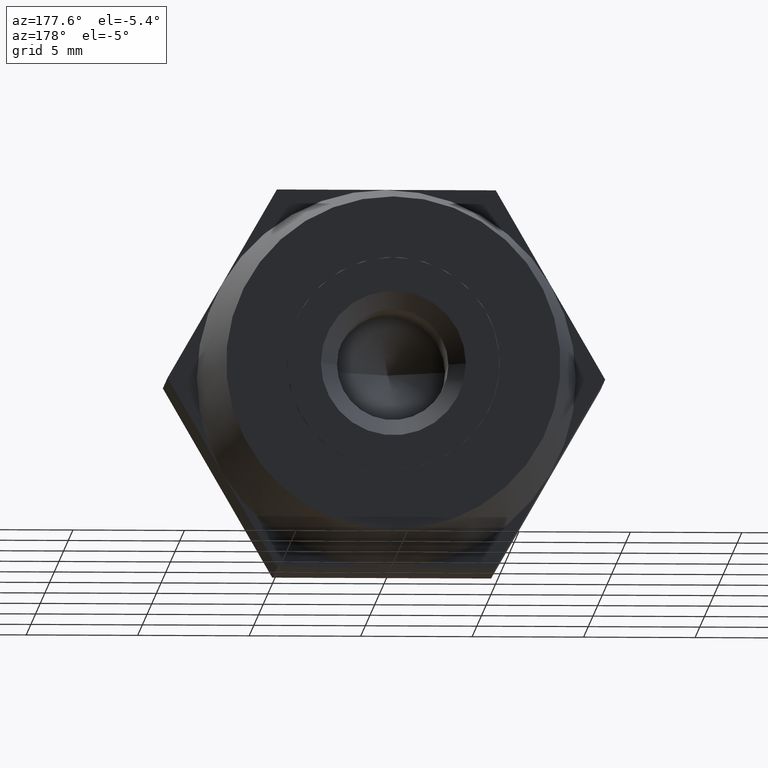
[diagram: clean part render]
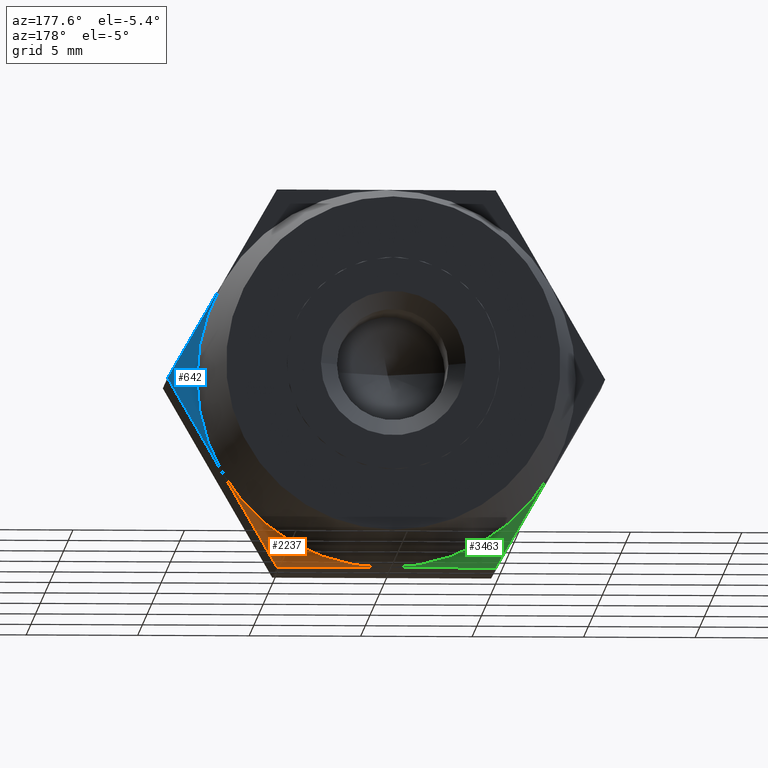
[diagram: same view with three faces highlighted in distinct colors, each labeled with its STEP entity id]
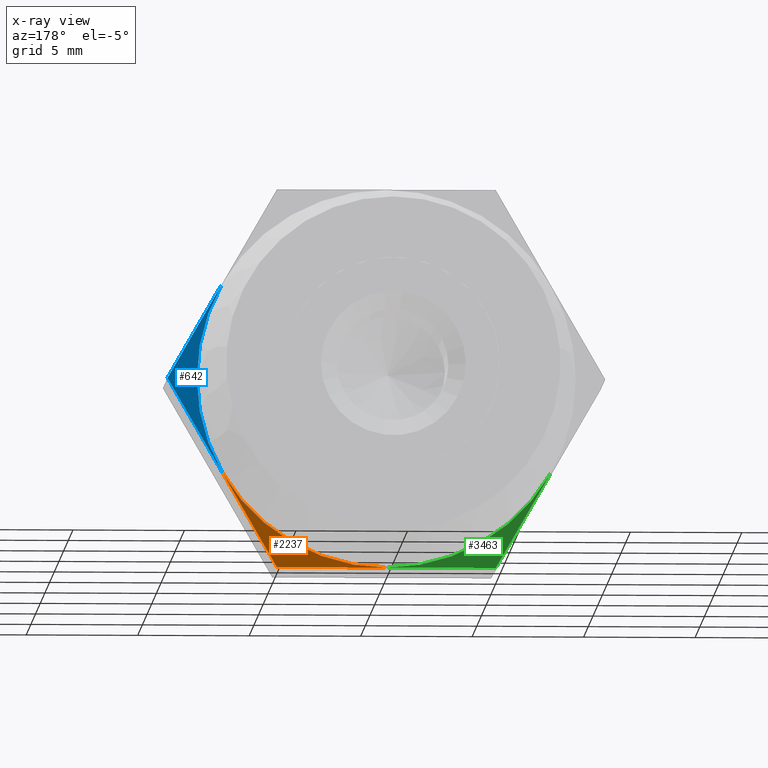
[diagram: x-ray of the same camera — body ghosted, the three highlighted faces saturated]
A machine part, auxiliary view with three faces highlighted in distinct colors.
The next image is the same camera in x-ray (body ghosted, the three faces saturated) — at least one of them is partly hidden behind the body in this view.
Their STEP definitions:

[orange] entity #2237 — the highlighted planar face has unit normal (0, 1, 0).
#1 = CARTESIAN_POINT ( 'NONE',  ( 4.907477288111810100, 2.500000000000000000, -8.500000000000000000 ) ) ;
#169 = DIRECTION ( 'NONE',  ( 0.0000000000000000000, 0.0000000000000000000, 1.000000000000000000 ) ) ;
#210 = DIRECTION ( 'NONE',  ( 0.0000000000000000000, 1.000000000000000000, 0.0000000000000000000 ) ) ;
#477 = PLANE ( 'NONE',  #1403 ) ;
#498 = CARTESIAN_POINT ( 'NONE',  ( 0.0000000000000000000, 2.500000000000000000, 0.0000000000000000000 ) ) ;
#547 = DIRECTION ( 'NONE',  ( -0.4999999999999998900, 0.0000000000000000000, -0.8660254037844387100 ) ) ;
#748 = EDGE_CURVE ( 'NONE', #3377, #1624, #1048, .T. ) ;
#1048 = LINE ( 'NONE', #1929, #3197 ) ;
#1079 = CARTESIAN_POINT ( 'NONE',  ( 9.814954576223639600, 2.500000000000000000, -1.574757103346314900E-015 ) ) ;
#1090 = LINE ( 'NONE', #1079, #1737 ) ;
#1174 = CARTESIAN_POINT ( 'NONE',  ( 7.361215932167730200, 2.500000000000000000, -4.250000000000000000 ) ) ;
#1403 = AXIS2_PLACEMENT_3D ( 'NONE', #2855, #210, #2880 ) ;
#1624 = VERTEX_POINT ( 'NONE', #3351 ) ;
#1737 = VECTOR ( 'NONE', #547, 1000.000000000000000 ) ;
#1844 = ORIENTED_EDGE ( 'NONE', *, *, #2571, .F. ) ;
#1848 = EDGE_CURVE ( 'NONE', #3218, #3377, #1090, .T. ) ;
#1929 = CARTESIAN_POINT ( 'NONE',  ( 4.907477288111810100, 2.500000000000000000, -8.500000000000000000 ) ) ;
#2237 = ADVANCED_FACE ( 'NONE', ( #3685 ), #477, .T. ) ;
#2571 = EDGE_CURVE ( 'NONE', #3218, #1624, #3635, .T. ) ;
#2584 = DIRECTION ( 'NONE',  ( -1.000000000000000000, 0.0000000000000000000, 0.0000000000000000000 ) ) ;
#2855 = CARTESIAN_POINT ( 'NONE',  ( 0.0000000000000000000, 2.500000000000000000, 0.0000000000000000000 ) ) ;
#2880 = DIRECTION ( 'NONE',  ( 0.0000000000000000000, 0.0000000000000000000, 1.000000000000000000 ) ) ;
#3104 = EDGE_LOOP ( 'NONE', ( #1844, #3508, #3479 ) ) ;
#3197 = VECTOR ( 'NONE', #2584, 1000.000000000000000 ) ;
#3218 = VERTEX_POINT ( 'NONE', #1174 ) ;
#3351 = CARTESIAN_POINT ( 'NONE',  ( 0.0000000000000000000, 2.500000000000000000, -8.500000000000000000 ) ) ;
#3353 = AXIS2_PLACEMENT_3D ( 'NONE', #498, #3759, #169 ) ;
#3377 = VERTEX_POINT ( 'NONE', #1 ) ;
#3479 = ORIENTED_EDGE ( 'NONE', *, *, #748, .T. ) ;
#3508 = ORIENTED_EDGE ( 'NONE', *, *, #1848, .T. ) ;
#3635 = CIRCLE ( 'NONE', #3353, 8.500000000000000000 ) ;
#3685 = FACE_OUTER_BOUND ( 'NONE', #3104, .T. ) ;
#3759 = DIRECTION ( 'NONE',  ( 0.0000000000000000000, 1.000000000000000000, 0.0000000000000000000 ) ) ;

[blue] entity #642 — the highlighted planar face has unit normal (0, 1, 0).
#17 = DIRECTION ( 'NONE',  ( 0.0000000000000000000, 1.000000000000000000, 0.0000000000000000000 ) ) ;
#149 = ORIENTED_EDGE ( 'NONE', *, *, #758, .T. ) ;
#502 = CARTESIAN_POINT ( 'NONE',  ( 9.814954576223639600, 2.500000000000000000, -1.574757103346314900E-015 ) ) ;
#539 = LINE ( 'NONE', #502, #3846 ) ;
#642 = ADVANCED_FACE ( 'NONE', ( #2320 ), #3439, .T. ) ;
#728 = EDGE_LOOP ( 'NONE', ( #1761, #1009, #149 ) ) ;
#758 = EDGE_CURVE ( 'NONE', #828, #3218, #539, .T. ) ;
#784 = DIRECTION ( 'NONE',  ( 0.4999999999999998900, 0.0000000000000000000, -0.8660254037844387100 ) ) ;
#828 = VERTEX_POINT ( 'NONE', #1011 ) ;
#930 = AXIS2_PLACEMENT_3D ( 'NONE', #1054, #2526, #1620 ) ;
#973 = EDGE_CURVE ( 'NONE', #2840, #828, #3561, .T. ) ;
#1009 = ORIENTED_EDGE ( 'NONE', *, *, #973, .T. ) ;
#1011 = CARTESIAN_POINT ( 'NONE',  ( 9.814954576223639600, 2.500000000000000000, -1.574757103346314900E-015 ) ) ;
#1054 = CARTESIAN_POINT ( 'NONE',  ( 0.0000000000000000000, 2.500000000000000000, 0.0000000000000000000 ) ) ;
#1174 = CARTESIAN_POINT ( 'NONE',  ( 7.361215932167730200, 2.500000000000000000, -4.250000000000000000 ) ) ;
#1529 = DIRECTION ( 'NONE',  ( 0.0000000000000000000, 0.0000000000000000000, 1.000000000000000000 ) ) ;
#1620 = DIRECTION ( 'NONE',  ( 0.0000000000000000000, 0.0000000000000000000, 1.000000000000000000 ) ) ;
#1761 = ORIENTED_EDGE ( 'NONE', *, *, #2060, .F. ) ;
#1825 = VECTOR ( 'NONE', #784, 1000.000000000000000 ) ;
#2060 = EDGE_CURVE ( 'NONE', #2840, #3218, #3788, .T. ) ;
#2320 = FACE_OUTER_BOUND ( 'NONE', #728, .T. ) ;
#2374 = AXIS2_PLACEMENT_3D ( 'NONE', #3333, #17, #1529 ) ;
#2526 = DIRECTION ( 'NONE',  ( 0.0000000000000000000, 1.000000000000000000, 0.0000000000000000000 ) ) ;
#2840 = VERTEX_POINT ( 'NONE', #3048 ) ;
#3048 = CARTESIAN_POINT ( 'NONE',  ( 7.361215932167730200, 2.500000000000000000, 4.250000000000000000 ) ) ;
#3076 = DIRECTION ( 'NONE',  ( -0.4999999999999998900, 0.0000000000000000000, -0.8660254037844387100 ) ) ;
#3149 = CARTESIAN_POINT ( 'NONE',  ( 4.907477288111820700, 2.500000000000000000, 8.500000000000000000 ) ) ;
#3218 = VERTEX_POINT ( 'NONE', #1174 ) ;
#3333 = CARTESIAN_POINT ( 'NONE',  ( 0.0000000000000000000, 2.500000000000000000, 0.0000000000000000000 ) ) ;
#3439 = PLANE ( 'NONE',  #930 ) ;
#3561 = LINE ( 'NONE', #3149, #1825 ) ;
#3788 = CIRCLE ( 'NONE', #2374, 8.500000000000000000 ) ;
#3846 = VECTOR ( 'NONE', #3076, 1000.000000000000000 ) ;

[green] entity #3463 — the highlighted planar face has unit normal (0, 1, 0).
#101 = EDGE_CURVE ( 'NONE', #1624, #2302, #171, .T. ) ;
#162 = CARTESIAN_POINT ( 'NONE',  ( 0.0000000000000000000, 2.500000000000000000, 0.0000000000000000000 ) ) ;
#171 = LINE ( 'NONE', #2517, #543 ) ;
#291 = LINE ( 'NONE', #2020, #3362 ) ;
#367 = CARTESIAN_POINT ( 'NONE',  ( -7.361215932167740000, 2.500000000000000000, -4.250000000000000000 ) ) ;
#386 = DIRECTION ( 'NONE',  ( 0.0000000000000000000, 1.000000000000000000, 0.0000000000000000000 ) ) ;
#527 = CIRCLE ( 'NONE', #3250, 8.500000000000000000 ) ;
#530 = FACE_OUTER_BOUND ( 'NONE', #1608, .T. ) ;
#543 = VECTOR ( 'NONE', #1945, 1000.000000000000000 ) ;
#1158 = CARTESIAN_POINT ( 'NONE',  ( -4.907477288111829600, 2.500000000000000000, -8.500000000000000000 ) ) ;
#1608 = EDGE_LOOP ( 'NONE', ( #2460, #2550, #1792 ) ) ;
#1611 = VERTEX_POINT ( 'NONE', #367 ) ;
#1624 = VERTEX_POINT ( 'NONE', #3351 ) ;
#1637 = DIRECTION ( 'NONE',  ( 0.0000000000000000000, 1.000000000000000000, 0.0000000000000000000 ) ) ;
#1792 = ORIENTED_EDGE ( 'NONE', *, *, #1869, .T. ) ;
#1869 = EDGE_CURVE ( 'NONE', #2302, #1611, #291, .T. ) ;
#1945 = DIRECTION ( 'NONE',  ( -1.000000000000000000, 0.0000000000000000000, 0.0000000000000000000 ) ) ;
#2020 = CARTESIAN_POINT ( 'NONE',  ( -4.907477288111829600, 2.500000000000000000, -8.500000000000000000 ) ) ;
#2302 = VERTEX_POINT ( 'NONE', #1158 ) ;
#2460 = ORIENTED_EDGE ( 'NONE', *, *, #3569, .F. ) ;
#2517 = CARTESIAN_POINT ( 'NONE',  ( 4.907477288111810100, 2.500000000000000000, -8.500000000000000000 ) ) ;
#2550 = ORIENTED_EDGE ( 'NONE', *, *, #101, .T. ) ;
#2626 = DIRECTION ( 'NONE',  ( -0.4999999999999998900, 0.0000000000000000000, 0.8660254037844387100 ) ) ;
#3033 = CARTESIAN_POINT ( 'NONE',  ( 0.0000000000000000000, 2.500000000000000000, 0.0000000000000000000 ) ) ;
#3195 = AXIS2_PLACEMENT_3D ( 'NONE', #3033, #386, #3650 ) ;
#3250 = AXIS2_PLACEMENT_3D ( 'NONE', #162, #1637, #3708 ) ;
#3345 = PLANE ( 'NONE',  #3195 ) ;
#3351 = CARTESIAN_POINT ( 'NONE',  ( 0.0000000000000000000, 2.500000000000000000, -8.500000000000000000 ) ) ;
#3362 = VECTOR ( 'NONE', #2626, 1000.000000000000000 ) ;
#3463 = ADVANCED_FACE ( 'NONE', ( #530 ), #3345, .T. ) ;
#3569 = EDGE_CURVE ( 'NONE', #1624, #1611, #527, .T. ) ;
#3650 = DIRECTION ( 'NONE',  ( 0.0000000000000000000, 0.0000000000000000000, 1.000000000000000000 ) ) ;
#3708 = DIRECTION ( 'NONE',  ( 0.0000000000000000000, 0.0000000000000000000, 1.000000000000000000 ) ) ;